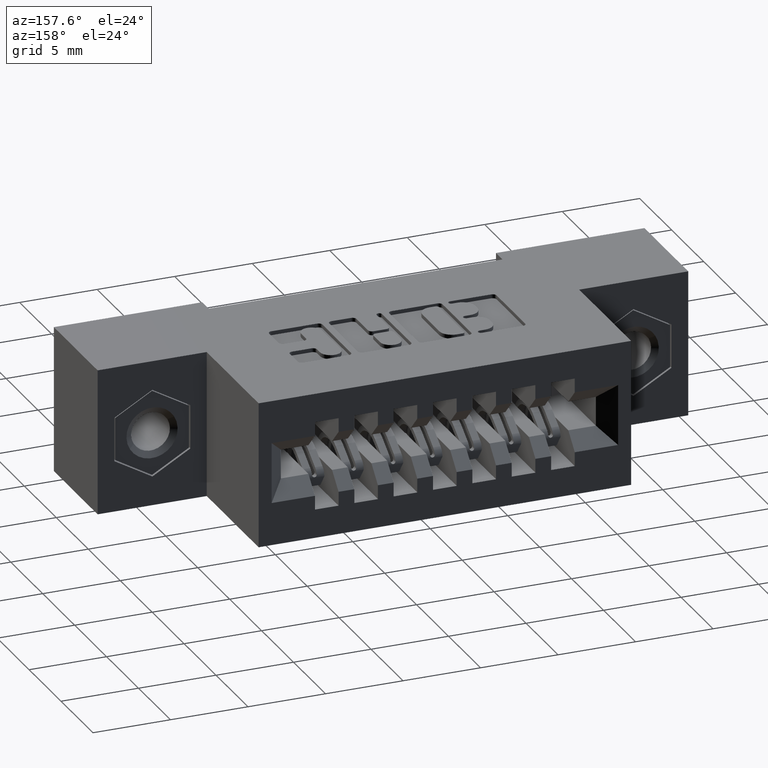
[diagram: clean part render]
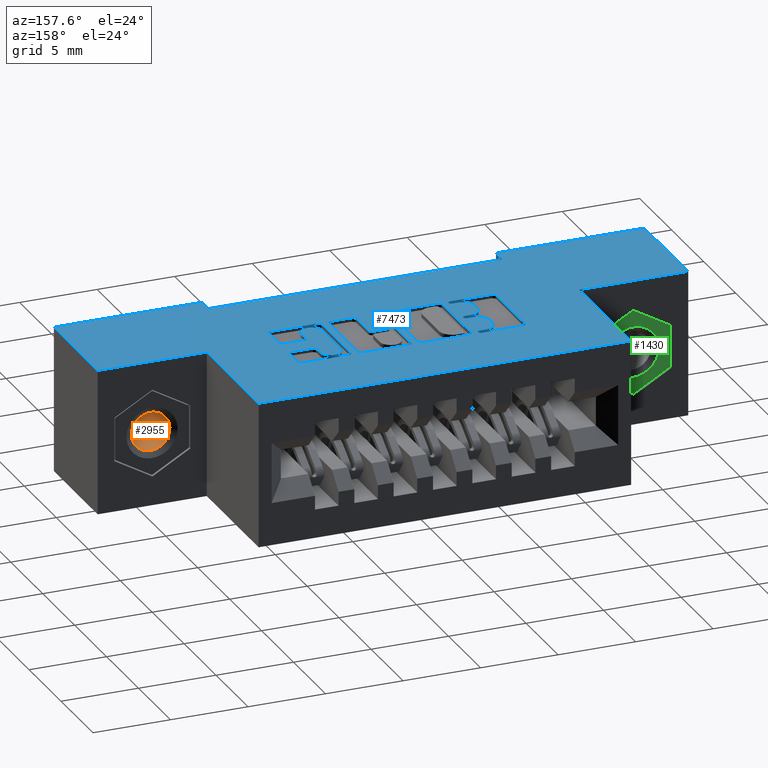
[diagram: same view with three faces highlighted in distinct colors, each labeled with its STEP entity id]
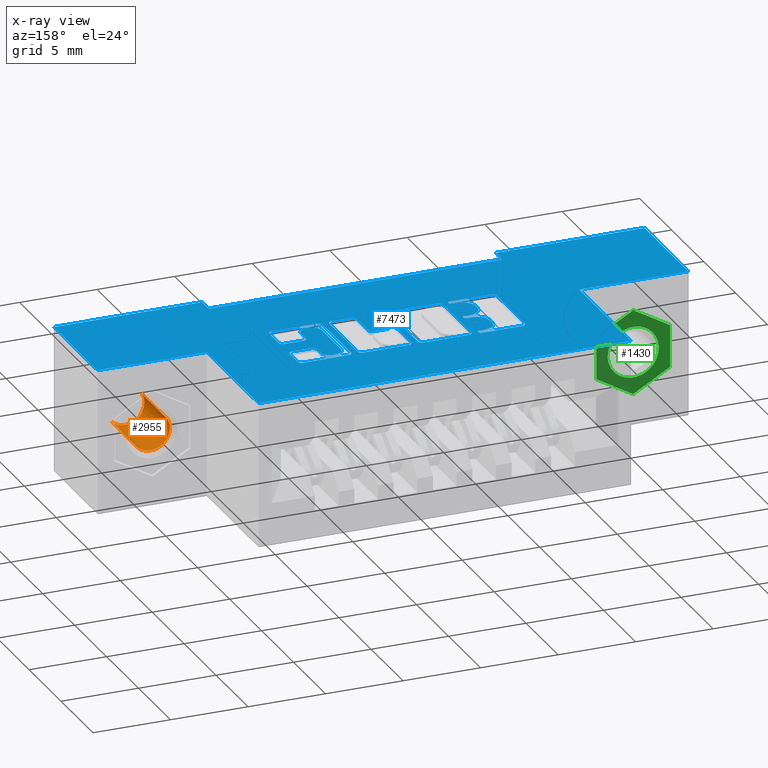
[diagram: x-ray of the same camera — body ghosted, the three highlighted faces saturated]
A machine part, auxiliary view with three faces highlighted in distinct colors.
The next image is the same camera in x-ray (body ghosted, the three faces saturated) — at least one of them is partly hidden behind the body in this view.
Their STEP definitions:

[orange] entity #2955 — the highlighted cylindrical surface (edge-blend (fillet) strip) has radius 1.25 mm, axis along (0, 1, 0).
#11 = CARTESIAN_POINT ( 'NONE',  ( 2.731847993664263200E-016, 0.1667125984251968700, 0.0000000000000000000 ) ) ;
#49 = CIRCLE ( 'NONE', #383, 0.04921259842519656900 ) ;
#81 = ORIENTED_EDGE ( 'NONE', *, *, #6259, .F. ) ;
#383 = AXIS2_PLACEMENT_3D ( 'NONE', #6000, #1315, #6780 ) ;
#675 = CARTESIAN_POINT ( 'NONE',  ( 5.469327078594382600E-016, -2.988895590331100800E-018, 0.04921259842519894200 ) ) ;
#790 = DIRECTION ( 'NONE',  ( -1.110223024625159700E-016, 0.0000000000000000000, 1.000000000000000000 ) ) ;
#813 = CARTESIAN_POINT ( 'NONE',  ( 5.518332947201812100E-016, 0.009114860549017465800, -0.04921259842519438300 ) ) ;
#1024 = ORIENTED_EDGE ( 'NONE', *, *, #5603, .T. ) ;
#1137 = DIRECTION ( 'NONE',  ( 1.110223024625159700E-016, 6.073435839552820600E-017, -1.000000000000000000 ) ) ;
#1315 = DIRECTION ( 'NONE',  ( 8.952246189382937400E-016, -1.000000000000000000, 6.073435839552846500E-017 ) ) ;
#1390 = ORIENTED_EDGE ( 'NONE', *, *, #7040, .F. ) ;
#1426 = CYLINDRICAL_SURFACE ( 'NONE', #2700, 0.04921259842519675600 ) ;
#1502 = DIRECTION ( 'NONE',  ( 8.952246189382937400E-016, -1.000000000000000000, 6.073435839552846500E-017 ) ) ;
#2214 = VERTEX_POINT ( 'NONE', #7452 ) ;
#2700 = AXIS2_PLACEMENT_3D ( 'NONE', #8784, #5061, #1137 ) ;
#2866 = VERTEX_POINT ( 'NONE', #813 ) ;
#2955 = ADVANCED_FACE ( 'NONE', ( #7591 ), #1426, .F. ) ;
#3823 = CIRCLE ( 'NONE', #8858, 0.04921259842519675600 ) ;
#4843 = DIRECTION ( 'NONE',  ( 8.952246189382937400E-016, -1.000000000000000000, 6.073435839552846500E-017 ) ) ;
#5061 = DIRECTION ( 'NONE',  ( 8.952246189382937400E-016, -1.000000000000000000, 6.073435839552846500E-017 ) ) ;
#5483 = DIRECTION ( 'NONE',  ( 8.952246189382937400E-016, -1.000000000000000000, 6.073435839552846500E-017 ) ) ;
#5603 = EDGE_CURVE ( 'NONE', #8729, #2866, #49, .T. ) ;
#6000 = CARTESIAN_POINT ( 'NONE',  ( 5.463695987328526400E-016, 0.009114860549017462400, 2.185478394931410600E-015 ) ) ;
#6132 = VECTOR ( 'NONE', #1502, 39.37007874015748100 ) ;
#6259 = EDGE_CURVE ( 'NONE', #2214, #7084, #3823, .T. ) ;
#6738 = EDGE_LOOP ( 'NONE', ( #81, #8319, #1024, #1390 ) ) ;
#6780 = DIRECTION ( 'NONE',  ( 1.110223024625163900E-016, 6.505213034913063600E-017, -1.000000000000000000 ) ) ;
#6910 = EDGE_CURVE ( 'NONE', #2214, #8729, #8126, .T. ) ;
#6979 = LINE ( 'NONE', #7105, #8713 ) ;
#7040 = EDGE_CURVE ( 'NONE', #7084, #2866, #6979, .T. ) ;
#7084 = VERTEX_POINT ( 'NONE', #8657 ) ;
#7105 = CARTESIAN_POINT ( 'NONE',  ( 5.518332947201812100E-016, 2.988895590331106600E-018, -0.04921259842519457000 ) ) ;
#7106 = CARTESIAN_POINT ( 'NONE',  ( 4.682301728798986400E-016, 0.009114860549017465800, 0.04921259842519875400 ) ) ;
#7452 = CARTESIAN_POINT ( 'NONE',  ( 2.677211033790978100E-016, 0.1667125984251968700, 0.04921259842519675600 ) ) ;
#7591 = FACE_OUTER_BOUND ( 'NONE', #6738, .T. ) ;
#8126 = LINE ( 'NONE', #675, #6132 ) ;
#8319 = ORIENTED_EDGE ( 'NONE', *, *, #6910, .T. ) ;
#8657 = CARTESIAN_POINT ( 'NONE',  ( 2.928524872544166700E-016, 0.1667125984251968700, -0.04921259842519675600 ) ) ;
#8713 = VECTOR ( 'NONE', #4843, 39.37007874015748100 ) ;
#8729 = VERTEX_POINT ( 'NONE', #7106 ) ;
#8784 = CARTESIAN_POINT ( 'NONE',  ( 5.463695987328526400E-016, 0.0000000000000000000, 2.185478394931410600E-015 ) ) ;
#8858 = AXIS2_PLACEMENT_3D ( 'NONE', #11, #5483, #790 ) ;

[blue] entity #7473 — the highlighted planar face has unit normal (0, 0, -1).
#2 = CARTESIAN_POINT ( 'NONE',  ( 0.7315956183678961100, 0.4131567020380509900, 0.0000000000000000000 ) ) ;
#71 = VECTOR ( 'NONE', #8279, 39.37007874015748100 ) ;
#97 = AXIS2_PLACEMENT_3D ( 'NONE', #4127, #9402, #4936 ) ;
#100 = DIRECTION ( 'NONE',  ( 0.0000000000000000000, 0.0000000000000000000, -1.000000000000000000 ) ) ;
#139 = DIRECTION ( 'NONE',  ( -1.000000000000000000, 0.0000000000000000000, 0.0000000000000000000 ) ) ;
#153 = ORIENTED_EDGE ( 'NONE', *, *, #7092, .F. ) ;
#160 = EDGE_CURVE ( 'NONE', #6953, #557, #7519, .T. ) ;
#197 = CARTESIAN_POINT ( 'NONE',  ( 0.2770000000000000200, 0.2699999999999999600, -1.696135816819084800E-017 ) ) ;
#203 = CARTESIAN_POINT ( 'NONE',  ( 1.046678631909972100, 0.0000000000000000000, 0.0000000000000000000 ) ) ;
#219 = EDGE_CURVE ( 'NONE', #4452, #749, #2970, .T. ) ;
#221 = CARTESIAN_POINT ( 'NONE',  ( 0.7585887114283308400, 0.2237142671046479200, 0.0000000000000000000 ) ) ;
#256 = CARTESIAN_POINT ( 'NONE',  ( 0.8346601555077879400, 0.2266589681657878200, 0.0000000000000000000 ) ) ;
#261 = FACE_BOUND ( 'NONE', #8059, .T. ) ;
#262 = CARTESIAN_POINT ( 'NONE',  ( 0.5382269153529095600, 0.0000000000000000000, 0.0000000000000000000 ) ) ;
#274 = VERTEX_POINT ( 'NONE', #8134 ) ;
#294 = VECTOR ( 'NONE', #8638, 39.37007874015748100 ) ;
#295 = VERTEX_POINT ( 'NONE', #687 ) ;
#323 = EDGE_CURVE ( 'NONE', #1376, #5575, #2468, .T. ) ;
#350 = CARTESIAN_POINT ( 'NONE',  ( 0.6157707099629760000, 0.2266589681657899300, 0.0000000000000000000 ) ) ;
#357 = VERTEX_POINT ( 'NONE', #1620 ) ;
#376 = VERTEX_POINT ( 'NONE', #3163 ) ;
#394 = DIRECTION ( 'NONE',  ( 0.0000000000000000000, -1.000000000000000000, 0.0000000000000000000 ) ) ;
#402 = CARTESIAN_POINT ( 'NONE',  ( 0.5696370600051253700, 0.3680046191005197900, 0.0000000000000000000 ) ) ;
#424 = CARTESIAN_POINT ( 'NONE',  ( 1.500000000000000200, 0.5899999999999999700, 0.0000000000000000000 ) ) ;
#438 = LINE ( 'NONE', #262, #8403 ) ;
#441 = CARTESIAN_POINT ( 'NONE',  ( 0.8842292900370104500, 0.2168432979619846200, 0.0000000000000000000 ) ) ;
#460 = EDGE_CURVE ( 'NONE', #3852, #6860, #7302, .T. ) ;
#496 = CARTESIAN_POINT ( 'NONE',  ( 0.7315956183678620200, 0.2266589681657899300, 0.0000000000000000000 ) ) ;
#534 = EDGE_CURVE ( 'NONE', #3798, #9093, #6605, .T. ) ;
#541 = ORIENTED_EDGE ( 'NONE', *, *, #8418, .F. ) ;
#543 = CARTESIAN_POINT ( 'NONE',  ( 0.3770000000000000600, 0.04000000000000000100, 0.0000000000000000000 ) ) ;
#557 = VERTEX_POINT ( 'NONE', #8303 ) ;
#565 = CARTESIAN_POINT ( 'NONE',  ( 1.123000000000000200, 0.0000000000000000000, -1.895600338963814900E-033 ) ) ;
#569 = AXIS2_PLACEMENT_3D ( 'NONE', #1028, #6471, #1821 ) ;
#591 = ORIENTED_EDGE ( 'NONE', *, *, #3522, .F. ) ;
#599 = VECTOR ( 'NONE', #1406, 39.37007874015748100 ) ;
#609 = DIRECTION ( 'NONE',  ( 1.000000000000000000, 0.0000000000000000000, 0.0000000000000000000 ) ) ;
#615 = CIRCLE ( 'NONE', #1755, 0.03141014465218178200 ) ;
#617 = CARTESIAN_POINT ( 'NONE',  ( 0.9112223830974585100, 0.4033410318342101100, 0.0000000000000000000 ) ) ;
#618 = ORIENTED_EDGE ( 'NONE', *, *, #3350, .F. ) ;
#626 = DIRECTION ( 'NONE',  ( 1.000000000000000000, 0.0000000000000000000, 0.0000000000000000000 ) ) ;
#644 = LINE ( 'NONE', #3091, #2510 ) ;
#687 = CARTESIAN_POINT ( 'NONE',  ( 1.046678631909972100, 0.3537718973050386600, 0.0000000000000000000 ) ) ;
#694 = VERTEX_POINT ( 'NONE', #4759 ) ;
#705 = CIRCLE ( 'NONE', #3276, 0.006870969142657995000 ) ;
#749 = VERTEX_POINT ( 'NONE', #7565 ) ;
#803 = CARTESIAN_POINT ( 'NONE',  ( 0.0000000000000000000, 0.3218709691426838700, 0.0000000000000000000 ) ) ;
#814 = CARTESIAN_POINT ( 'NONE',  ( 0.8150288151001881000, 0.3081290308573497700, 0.0000000000000000000 ) ) ;
#847 = ORIENTED_EDGE ( 'NONE', *, *, #2087, .F. ) ;
#854 = DIRECTION ( 'NONE',  ( 0.0000000000000000000, -1.000000000000000000, 0.0000000000000000000 ) ) ;
#890 = EDGE_CURVE ( 'NONE', #6743, #4610, #7295, .T. ) ;
#900 = AXIS2_PLACEMENT_3D ( 'NONE', #8083, #3517, #8825 ) ;
#904 = EDGE_CURVE ( 'NONE', #4338, #4242, #5276, .T. ) ;
#943 = ORIENTED_EDGE ( 'NONE', *, *, #4410, .T. ) ;
#980 = ORIENTED_EDGE ( 'NONE', *, *, #2233, .T. ) ;
#1028 = CARTESIAN_POINT ( 'NONE',  ( 0.5831336065353355200, 0.2237142671046479200, 0.0000000000000000000 ) ) ;
#1036 = ORIENTED_EDGE ( 'NONE', *, *, #7451, .F. ) ;
#1061 = CARTESIAN_POINT ( 'NONE',  ( 0.5382269153529277700, 0.2619953808994903700, 0.0000000000000000000 ) ) ;
#1085 = VERTEX_POINT ( 'NONE', #3289 ) ;
#1086 = EDGE_CURVE ( 'NONE', #6871, #3355, #7626, .T. ) ;
#1096 = ORIENTED_EDGE ( 'NONE', *, *, #9743, .F. ) ;
#1117 = CARTESIAN_POINT ( 'NONE',  ( 1.036862961706132000, 0.4033410318342109400, 0.0000000000000000000 ) ) ;
#1120 = EDGE_CURVE ( 'NONE', #3050, #357, #7399, .T. ) ;
#1150 = CIRCLE ( 'NONE', #3542, 0.009815670203811672700 ) ;
#1189 = DIRECTION ( 'NONE',  ( 1.000000000000000000, 0.0000000000000000000, 0.0000000000000000000 ) ) ;
#1194 = VERTEX_POINT ( 'NONE', #1770 ) ;
#1237 = DIRECTION ( 'NONE',  ( -0.0000000000000000000, 0.0000000000000000000, 1.000000000000000000 ) ) ;
#1244 = VERTEX_POINT ( 'NONE', #617 ) ;
#1248 = LINE ( 'NONE', #6311, #6369 ) ;
#1253 = CARTESIAN_POINT ( 'NONE',  ( 1.223000000000000100, 0.2699999999999999600, -1.328129453675304600E-016 ) ) ;
#1264 = CARTESIAN_POINT ( 'NONE',  ( 0.6157707099630100900, 0.4033410318342101100, 0.0000000000000000000 ) ) ;
#1283 = DIRECTION ( 'NONE',  ( -0.0000000000000000000, -1.000000000000000000, -0.0000000000000000000 ) ) ;
#1304 = EDGE_CURVE ( 'NONE', #2135, #357, #5755, .T. ) ;
#1310 = CIRCLE ( 'NONE', #900, 0.02625691779518036400 ) ;
#1323 = LINE ( 'NONE', #203, #8998 ) ;
#1330 = DIRECTION ( 'NONE',  ( -0.0000000000000000000, 0.0000000000000000000, 1.000000000000000000 ) ) ;
#1376 = VERTEX_POINT ( 'NONE', #4316 ) ;
#1391 = VECTOR ( 'NONE', #3413, 39.37007874015748100 ) ;
#1404 = ORIENTED_EDGE ( 'NONE', *, *, #2504, .T. ) ;
#1406 = DIRECTION ( 'NONE',  ( 0.0000000000000000000, -1.000000000000000000, 0.0000000000000000000 ) ) ;
#1414 = VERTEX_POINT ( 'NONE', #4503 ) ;
#1436 = CARTESIAN_POINT ( 'NONE',  ( 0.0000000000000000000, 0.2963502266127575600, 0.0000000000000000000 ) ) ;
#1439 = ORIENTED_EDGE ( 'NONE', *, *, #904, .F. ) ;
#1440 = EDGE_CURVE ( 'NONE', #7650, #6435, #6822, .T. ) ;
#1456 = ORIENTED_EDGE ( 'NONE', *, *, #3552, .F. ) ;
#1512 = LINE ( 'NONE', #2605, #7213 ) ;
#1526 = EDGE_CURVE ( 'NONE', #6654, #3363, #1970, .T. ) ;
#1553 = VECTOR ( 'NONE', #4535, 39.37007874015748100 ) ;
#1590 = DIRECTION ( 'NONE',  ( -1.000000000000000000, 0.0000000000000000000, 0.0000000000000000000 ) ) ;
#1620 = CARTESIAN_POINT ( 'NONE',  ( 0.8346601555077857200, 0.2168432979619846200, 0.0000000000000000000 ) ) ;
#1623 = CARTESIAN_POINT ( 'NONE',  ( 0.8150288151001877600, 0.2983133606535527900, 0.0000000000000000000 ) ) ;
#1690 = ORIENTED_EDGE ( 'NONE', *, *, #7628, .T. ) ;
#1691 = EDGE_CURVE ( 'NONE', #5988, #7830, #4421, .T. ) ;
#1733 = VERTEX_POINT ( 'NONE', #565 ) ;
#1739 = EDGE_CURVE ( 'NONE', #6368, #274, #5747, .T. ) ;
#1747 = CARTESIAN_POINT ( 'NONE',  ( 0.9210380533012994000, 0.4131567020380509900, 0.0000000000000000000 ) ) ;
#1748 = CARTESIAN_POINT ( 'NONE',  ( 0.3770000000000000600, 0.04000000000000000100, 0.0000000000000000000 ) ) ;
#1755 = AXIS2_PLACEMENT_3D ( 'NONE', #8864, #4368, #9603 ) ;
#1757 = AXIS2_PLACEMENT_3D ( 'NONE', #8038, #3457, #8774 ) ;
#1769 = VECTOR ( 'NONE', #9368, 39.37007874015748100 ) ;
#1770 = CARTESIAN_POINT ( 'NONE',  ( 0.5900045756779998000, 0.4062857328953862800, 0.0000000000000000000 ) ) ;
#1774 = ORIENTED_EDGE ( 'NONE', *, *, #1691, .F. ) ;
#1777 = CIRCLE ( 'NONE', #569, 0.006870969142662229500 ) ;
#1804 = CARTESIAN_POINT ( 'NONE',  ( 0.5831336064154143400, 0.2168432979619857000, 0.0000000000000000000 ) ) ;
#1806 = EDGE_CURVE ( 'NONE', #295, #9564, #1323, .T. ) ;
#1817 = AXIS2_PLACEMENT_3D ( 'NONE', #2140, #7517, #2942 ) ;
#1821 = DIRECTION ( 'NONE',  ( 1.000000000000000000, 0.0000000000000000000, 0.0000000000000000000 ) ) ;
#1822 = AXIS2_PLACEMENT_3D ( 'NONE', #9734, #9660, #9649 ) ;
#1833 = EDGE_CURVE ( 'NONE', #7462, #4338, #2954, .T. ) ;
#1861 = DIRECTION ( 'NONE',  ( 1.000000000000000000, 0.0000000000000000000, 0.0000000000000000000 ) ) ;
#1863 = DIRECTION ( 'NONE',  ( -0.0000000000000000000, 0.0000000000000000000, 1.000000000000000000 ) ) ;
#1908 = EDGE_CURVE ( 'NONE', #5237, #376, #4537, .T. ) ;
#1909 = DIRECTION ( 'NONE',  ( 1.000000000000000000, 0.0000000000000000000, 0.0000000000000000000 ) ) ;
#1916 = VERTEX_POINT ( 'NONE', #221 ) ;
#1926 = CARTESIAN_POINT ( 'NONE',  ( 0.0000000000000000000, 0.5899999999999999700, 0.0000000000000000000 ) ) ;
#1945 = CARTESIAN_POINT ( 'NONE',  ( 0.5831336065353099900, 0.3150000000000203200, 0.0000000000000000000 ) ) ;
#1948 = ORIENTED_EDGE ( 'NONE', *, *, #5367, .T. ) ;
#1959 = CARTESIAN_POINT ( 'NONE',  ( 0.2770000000000000200, 0.2699999999999999600, -1.696135816819084800E-017 ) ) ;
#1970 = CIRCLE ( 'NONE', #4709, 0.009815670203795690700 ) ;
#1994 = CARTESIAN_POINT ( 'NONE',  ( 0.9774781569731658700, 0.3731578454992599000, 0.0000000000000000000 ) ) ;
#2006 = LINE ( 'NONE', #8433, #5901 ) ;
#2029 = LINE ( 'NONE', #9389, #9846 ) ;
#2036 = ORIENTED_EDGE ( 'NONE', *, *, #6324, .F. ) ;
#2087 = EDGE_CURVE ( 'NONE', #1916, #6357, #705, .T. ) ;
#2126 = LINE ( 'NONE', #197, #4209 ) ;
#2135 = VERTEX_POINT ( 'NONE', #2190 ) ;
#2139 = LINE ( 'NONE', #9638, #6028 ) ;
#2140 = CARTESIAN_POINT ( 'NONE',  ( 0.5696370600050839600, 0.2767188862052005200, 0.0000000000000000000 ) ) ;
#2149 = CARTESIAN_POINT ( 'NONE',  ( 0.9774781569731789700, 0.2568421540424529700, 0.0000000000000000000 ) ) ;
#2152 = CARTESIAN_POINT ( 'NONE',  ( 0.9872938271769670100, 0.2865345564089695800, 0.0000000000000000000 ) ) ;
#2190 = CARTESIAN_POINT ( 'NONE',  ( 0.8248444853039846900, 0.2266589681657878200, 0.0000000000000000000 ) ) ;
#2204 = ORIENTED_EDGE ( 'NONE', *, *, #3492, .F. ) ;
#2233 = EDGE_CURVE ( 'NONE', #4799, #6357, #3660, .T. ) ;
#2255 = EDGE_CURVE ( 'NONE', #6860, #1194, #3425, .T. ) ;
#2260 = CARTESIAN_POINT ( 'NONE',  ( 1.036862961706167100, 0.3439562271012336900, 0.0000000000000000000 ) ) ;
#2270 = AXIS2_PLACEMENT_3D ( 'NONE', #350, #8537, #4638 ) ;
#2279 = CIRCLE ( 'NONE', #6782, 0.009815670203796920600 ) ;
#2294 = CARTESIAN_POINT ( 'NONE',  ( -2.742036592681083100E-014, 0.2305852362472408400, 0.0000000000000000000 ) ) ;
#2304 = CARTESIAN_POINT ( 'NONE',  ( 0.5831336065353355200, 0.2237142671046479200, 0.0000000000000000000 ) ) ;
#2354 = ORIENTED_EDGE ( 'NONE', *, *, #1833, .F. ) ;
#2357 = FACE_OUTER_BOUND ( 'NONE', #4311, .T. ) ;
#2371 = CARTESIAN_POINT ( 'NONE',  ( 0.7315956183678620200, 0.2168432979619831800, 0.0000000000000000000 ) ) ;
#2395 = VECTOR ( 'NONE', #6377, 39.37007874015748100 ) ;
#2396 = VERTEX_POINT ( 'NONE', #1061 ) ;
#2413 = VERTEX_POINT ( 'NONE', #1804 ) ;
#2415 = AXIS2_PLACEMENT_3D ( 'NONE', #3242, #5181, #5128 ) ;
#2427 = AXIS2_PLACEMENT_3D ( 'NONE', #1945, #7345, #2756 ) ;
#2431 = DIRECTION ( 'NONE',  ( 1.000000000000000000, 0.0000000000000000000, 0.0000000000000000000 ) ) ;
#2446 = CARTESIAN_POINT ( 'NONE',  ( 0.0000000000000000000, 0.4131567020380509900, 0.0000000000000000000 ) ) ;
#2461 = ORIENTED_EDGE ( 'NONE', *, *, #1739, .T. ) ;
#2462 = EDGE_CURVE ( 'NONE', #7788, #3798, #9562, .T. ) ;
#2468 = LINE ( 'NONE', #4828, #6102 ) ;
#2504 = EDGE_CURVE ( 'NONE', #5521, #9073, #9331, .T. ) ;
#2510 = VECTOR ( 'NONE', #3855, 39.37007874015748100 ) ;
#2552 = EDGE_CURVE ( 'NONE', #3169, #2870, #4896, .T. ) ;
#2578 = CIRCLE ( 'NONE', #8197, 0.009815670203840902800 ) ;
#2586 = ORIENTED_EDGE ( 'NONE', *, *, #3028, .F. ) ;
#2596 = ORIENTED_EDGE ( 'NONE', *, *, #3996, .T. ) ;
#2605 = CARTESIAN_POINT ( 'NONE',  ( 0.5382269153529277700, 0.0000000000000000000, 0.0000000000000000000 ) ) ;
#2620 = FACE_BOUND ( 'NONE', #3788, .T. ) ;
#2628 = CARTESIAN_POINT ( 'NONE',  ( 0.8940449602408067100, 0.2266589681657808500, 0.0000000000000000000 ) ) ;
#2630 = VECTOR ( 'NONE', #139, 39.37007874015748100 ) ;
#2635 = VERTEX_POINT ( 'NONE', #8989 ) ;
#2682 = CARTESIAN_POINT ( 'NONE',  ( 1.036862961706134200, 0.2266589681657899300, 0.0000000000000000000 ) ) ;
#2756 = DIRECTION ( 'NONE',  ( 1.000000000000000000, 0.0000000000000000000, 0.0000000000000000000 ) ) ;
#2763 = CARTESIAN_POINT ( 'NONE',  ( 0.8248444853039846900, 0.0000000000000000000, 0.0000000000000000000 ) ) ;
#2779 = VERTEX_POINT ( 'NONE', #4001 ) ;
#2786 = CIRCLE ( 'NONE', #8070, 0.009815670203803203800 ) ;
#2799 = DIRECTION ( 'NONE',  ( -0.0000000000000000000, 0.0000000000000000000, 1.000000000000000000 ) ) ;
#2808 = VECTOR ( 'NONE', #9414, 39.37007874015748100 ) ;
#2812 = CARTESIAN_POINT ( 'NONE',  ( -0.0000000000000000000, 0.2168432979619831800, 0.0000000000000000000 ) ) ;
#2816 = LINE ( 'NONE', #4405, #8411 ) ;
#2847 = VERTEX_POINT ( 'NONE', #1747 ) ;
#2860 = ORIENTED_EDGE ( 'NONE', *, *, #8986, .F. ) ;
#2870 = VERTEX_POINT ( 'NONE', #2 ) ;
#2942 = DIRECTION ( 'NONE',  ( 1.000000000000000000, 0.0000000000000000000, 0.0000000000000000000 ) ) ;
#2951 = DIRECTION ( 'NONE',  ( 1.000000000000000000, 0.0000000000000000000, 0.0000000000000000000 ) ) ;
#2952 = VERTEX_POINT ( 'NONE', #4265 ) ;
#2954 = LINE ( 'NONE', #7543, #6816 ) ;
#2956 = VECTOR ( 'NONE', #7829, 39.37007874015748100 ) ;
#2968 = CARTESIAN_POINT ( 'NONE',  ( 0.7414112885716689400, 0.4033410318342101100, 0.0000000000000000000 ) ) ;
#2970 = CIRCLE ( 'NONE', #4975, 0.009815670203840902800 ) ;
#2976 = VECTOR ( 'NONE', #1590, 39.37007874015748100 ) ;
#2982 = ORIENTED_EDGE ( 'NONE', *, *, #5066, .F. ) ;
#3012 = DIRECTION ( 'NONE',  ( -0.0000000000000000000, 0.0000000000000000000, 1.000000000000000000 ) ) ;
#3025 = AXIS2_PLACEMENT_3D ( 'NONE', #2304, #7677, #3098 ) ;
#3028 = EDGE_CURVE ( 'NONE', #2635, #6345, #8861, .T. ) ;
#3050 = VERTEX_POINT ( 'NONE', #441 ) ;
#3063 = EDGE_CURVE ( 'NONE', #7898, #9321, #2816, .T. ) ;
#3090 = CARTESIAN_POINT ( 'NONE',  ( 0.5696370600050839600, 0.3081290308573568200, 0.0000000000000000000 ) ) ;
#3091 = CARTESIAN_POINT ( 'NONE',  ( 0.0000000000000000000, 0.0000000000000000000, 0.0000000000000000000 ) ) ;
#3098 = DIRECTION ( 'NONE',  ( 1.000000000000000000, 0.0000000000000000000, 0.0000000000000000000 ) ) ;
#3125 = VERTEX_POINT ( 'NONE', #6787 ) ;
#3155 = EDGE_CURVE ( 'NONE', #1244, #1085, #9879, .T. ) ;
#3158 = DIRECTION ( 'NONE',  ( 1.000000000000000000, 0.0000000000000000000, 0.0000000000000000000 ) ) ;
#3163 = CARTESIAN_POINT ( 'NONE',  ( 0.7821463199174502100, 0.3081290308573486100, 0.0000000000000000000 ) ) ;
#3169 = VERTEX_POINT ( 'NONE', #2968 ) ;
#3170 = CARTESIAN_POINT ( 'NONE',  ( 0.5831336065353512900, 0.4062857328953862800, 0.0000000000000000000 ) ) ;
#3189 = ORIENTED_EDGE ( 'NONE', *, *, #2462, .F. ) ;
#3191 = LINE ( 'NONE', #2446, #2956 ) ;
#3192 = ORIENTED_EDGE ( 'NONE', *, *, #8976, .T. ) ;
#3214 = VECTOR ( 'NONE', #5126, 39.37007874015748100 ) ;
#3234 = DIRECTION ( 'NONE',  ( 1.000000000000000000, 0.0000000000000000000, -6.123233995736768500E-017 ) ) ;
#3236 = EDGE_CURVE ( 'NONE', #2413, #9332, #5011, .T. ) ;
#3242 = CARTESIAN_POINT ( 'NONE',  ( 0.5696370600050839600, 0.3532811137948583300, 0.0000000000000000000 ) ) ;
#3266 = CIRCLE ( 'NONE', #5562, 0.006870969142663527000 ) ;
#3276 = AXIS2_PLACEMENT_3D ( 'NONE', #8937, #8857, #7975 ) ;
#3289 = CARTESIAN_POINT ( 'NONE',  ( 0.9112223830974585100, 0.2266589681657899300, 0.0000000000000000000 ) ) ;
#3322 = ORIENTED_EDGE ( 'NONE', *, *, #5908, .F. ) ;
#3327 = VERTEX_POINT ( 'NONE', #4770 ) ;
#3338 = DIRECTION ( 'NONE',  ( -0.0000000000000000000, 1.000000000000000000, -0.0000000000000000000 ) ) ;
#3350 = EDGE_CURVE ( 'NONE', #9556, #5496, #7814, .T. ) ;
#3355 = VERTEX_POINT ( 'NONE', #9283 ) ;
#3363 = VERTEX_POINT ( 'NONE', #4807 ) ;
#3386 = AXIS2_PLACEMENT_3D ( 'NONE', #496, #8388, #8255 ) ;
#3413 = DIRECTION ( 'NONE',  ( 0.0000000000000000000, 1.000000000000000000, -0.0000000000000000000 ) ) ;
#3425 = CIRCLE ( 'NONE', #8374, 0.006870969142648501700 ) ;
#3431 = DIRECTION ( 'NONE',  ( 0.0000000000000000000, 1.000000000000000000, -0.0000000000000000000 ) ) ;
#3442 = DIRECTION ( 'NONE',  ( 1.000000000000000000, 0.0000000000000000000, 0.0000000000000000000 ) ) ;
#3457 = DIRECTION ( 'NONE',  ( -0.0000000000000000000, 0.0000000000000000000, 1.000000000000000000 ) ) ;
#3470 = VECTOR ( 'NONE', #4230, 39.37007874015748100 ) ;
#3483 = ORIENTED_EDGE ( 'NONE', *, *, #890, .T. ) ;
#3492 = EDGE_CURVE ( 'NONE', #6558, #9073, #6902, .T. ) ;
#3493 = CIRCLE ( 'NONE', #9367, 0.009815670203806345400 ) ;
#3517 = DIRECTION ( 'NONE',  ( -0.0000000000000000000, 0.0000000000000000000, 1.000000000000000000 ) ) ;
#3522 = EDGE_CURVE ( 'NONE', #6368, #4040, #438, .T. ) ;
#3542 = AXIS2_PLACEMENT_3D ( 'NONE', #9772, #5325, #626 ) ;
#3546 = DIRECTION ( 'NONE',  ( -0.0000000000000000000, 0.0000000000000000000, 1.000000000000000000 ) ) ;
#3549 = ORIENTED_EDGE ( 'NONE', *, *, #6751, .T. ) ;
#3552 = EDGE_CURVE ( 'NONE', #3050, #5395, #4385, .T. ) ;
#3560 = ORIENTED_EDGE ( 'NONE', *, *, #460, .F. ) ;
#3613 = EDGE_CURVE ( 'NONE', #2135, #8875, #8639, .T. ) ;
#3624 = CARTESIAN_POINT ( 'NONE',  ( 0.9872938271769670100, 0.2963502266127575600, 0.0000000000000000000 ) ) ;
#3660 = LINE ( 'NONE', #9546, #9453 ) ;
#3670 = EDGE_LOOP ( 'NONE', ( #2982, #4917, #6233, #2036, #1404, #2204, #9602, #4836, #541, #6988, #3189, #4271, #3995, #2586, #1036, #5503, #2860, #8313, #5512, #6212 ) ) ;
#3736 = VERTEX_POINT ( 'NONE', #7475 ) ;
#3763 = CIRCLE ( 'NONE', #5125, 0.009815670203796511200 ) ;
#3776 = DIRECTION ( 'NONE',  ( -0.0000000000000000000, 0.0000000000000000000, 1.000000000000000000 ) ) ;
#3783 = CARTESIAN_POINT ( 'NONE',  ( 1.223000000000000100, 0.5899999999999999700, -1.328129453675304600E-016 ) ) ;
#3786 = EDGE_CURVE ( 'NONE', #3327, #5738, #8276, .T. ) ;
#3788 = EDGE_LOOP ( 'NONE', ( #3192, #591, #2461, #6319, #4534, #8196, #4032, #3549, #3322, #4911, #5790, #6503, #4469, #8773, #7496, #7270, #7726, #6943, #7184, #3925, #3560 ) ) ;
#3798 = VERTEX_POINT ( 'NONE', #9740 ) ;
#3852 = VERTEX_POINT ( 'NONE', #6901 ) ;
#3855 = DIRECTION ( 'NONE',  ( 1.000000000000000000, 0.0000000000000000000, 0.0000000000000000000 ) ) ;
#3859 = CARTESIAN_POINT ( 'NONE',  ( -0.0000000000000000000, 0.3994147637527357100, 0.0000000000000000000 ) ) ;
#3925 = ORIENTED_EDGE ( 'NONE', *, *, #2255, .F. ) ;
#3932 = DIRECTION ( 'NONE',  ( 1.000000000000000000, 0.0000000000000000000, 0.0000000000000000000 ) ) ;
#3951 = LINE ( 'NONE', #7266, #3470 ) ;
#3958 = CARTESIAN_POINT ( 'NONE',  ( 0.5831336064153888100, 0.3081290308573568200, 0.0000000000000000000 ) ) ;
#3960 = VERTEX_POINT ( 'NONE', #4689 ) ;
#3973 = DIRECTION ( 'NONE',  ( -0.0000000000000000000, 0.0000000000000000000, 1.000000000000000000 ) ) ;
#3984 = CARTESIAN_POINT ( 'NONE',  ( 0.0000000000000000000, 0.5899999999999999700, 0.0000000000000000000 ) ) ;
#3995 = ORIENTED_EDGE ( 'NONE', *, *, #4785, .F. ) ;
#3996 = EDGE_CURVE ( 'NONE', #8875, #5237, #2279, .T. ) ;
#4001 = CARTESIAN_POINT ( 'NONE',  ( 0.5382269153529277700, 0.2767188862052005200, 0.0000000000000000000 ) ) ;
#4009 = DIRECTION ( 'NONE',  ( 1.000000000000000000, 0.0000000000000000000, 0.0000000000000000000 ) ) ;
#4032 = ORIENTED_EDGE ( 'NONE', *, *, #3063, .F. ) ;
#4040 = VERTEX_POINT ( 'NONE', #4831 ) ;
#4043 = AXIS2_PLACEMENT_3D ( 'NONE', #8531, #3973, #9251 ) ;
#4046 = CARTESIAN_POINT ( 'NONE',  ( 0.7723306497136468400, 0.2237142671046479200, 0.0000000000000000000 ) ) ;
#4091 = CARTESIAN_POINT ( 'NONE',  ( -0.0000000000000000000, 0.4131567020380065300, 0.0000000000000000000 ) ) ;
#4095 = CARTESIAN_POINT ( 'NONE',  ( 0.0000000000000000000, 0.4131567020380327300, 0.0000000000000000000 ) ) ;
#4113 = AXIS2_PLACEMENT_3D ( 'NONE', #4428, #4207, #3158 ) ;
#4125 = VERTEX_POINT ( 'NONE', #5696 ) ;
#4127 = CARTESIAN_POINT ( 'NONE',  ( 0.4788421106199221600, 0.2266589681657899300, 0.0000000000000000000 ) ) ;
#4156 = CARTESIAN_POINT ( 'NONE',  ( 0.5696370600051095000, 0.2305852362473085900, 0.0000000000000000000 ) ) ;
#4180 = CIRCLE ( 'NONE', #2427, 0.006870969142663527000 ) ;
#4207 = DIRECTION ( 'NONE',  ( -0.0000000000000000000, 0.0000000000000000000, 1.000000000000000000 ) ) ;
#4209 = VECTOR ( 'NONE', #3338, 39.37007874015748100 ) ;
#4229 = DIRECTION ( 'NONE',  ( -0.0000000000000000000, 0.0000000000000000000, 1.000000000000000000 ) ) ;
#4230 = DIRECTION ( 'NONE',  ( 0.0000000000000000000, -1.000000000000000000, 0.0000000000000000000 ) ) ;
#4242 = VERTEX_POINT ( 'NONE', #9530 ) ;
#4265 = CARTESIAN_POINT ( 'NONE',  ( 0.9774781569731658700, 0.3537718973050452100, 0.0000000000000000000 ) ) ;
#4271 = ORIENTED_EDGE ( 'NONE', *, *, #4771, .F. ) ;
#4282 = CARTESIAN_POINT ( 'NONE',  ( -1.087960964565582400E-014, 0.3081290308573210200, 0.0000000000000000000 ) ) ;
#4300 = ORIENTED_EDGE ( 'NONE', *, *, #1526, .F. ) ;
#4311 = EDGE_LOOP ( 'NONE', ( #8910, #8688, #6483, #1439, #2354, #5676, #1774, #153, #618, #1690, #3483, #7339 ) ) ;
#4316 = CARTESIAN_POINT ( 'NONE',  ( 0.4690264404161154100, 0.4033410318342101100, 0.0000000000000000000 ) ) ;
#4338 = VERTEX_POINT ( 'NONE', #5130 ) ;
#4346 = ORIENTED_EDGE ( 'NONE', *, *, #1304, .F. ) ;
#4353 = EDGE_CURVE ( 'NONE', #694, #1414, #3266, .T. ) ;
#4367 = ORIENTED_EDGE ( 'NONE', *, *, #6673, .T. ) ;
#4368 = DIRECTION ( 'NONE',  ( -0.0000000000000000000, 0.0000000000000000000, 1.000000000000000000 ) ) ;
#4376 = CARTESIAN_POINT ( 'NONE',  ( 0.8940449602408067100, 0.4033410318342009500, 0.0000000000000000000 ) ) ;
#4385 = CIRCLE ( 'NONE', #1757, 0.009815670203796237100 ) ;
#4405 = CARTESIAN_POINT ( 'NONE',  ( -0.0000000000000000000, 0.3081290308573568200, 0.0000000000000000000 ) ) ;
#4410 = EDGE_CURVE ( 'NONE', #376, #4799, #2786, .T. ) ;
#4421 = LINE ( 'NONE', #3984, #7974 ) ;
#4428 = CARTESIAN_POINT ( 'NONE',  ( 1.036862961706153100, 0.2865345564089704100, 0.0000000000000000000 ) ) ;
#4452 = VERTEX_POINT ( 'NONE', #8379 ) ;
#4469 = ORIENTED_EDGE ( 'NONE', *, *, #3236, .F. ) ;
#4474 = CARTESIAN_POINT ( 'NONE',  ( 0.9512212391779921700, 0.3731578459575296000, 0.0000000000000000000 ) ) ;
#4482 = LINE ( 'NONE', #4091, #294 ) ;
#4503 = CARTESIAN_POINT ( 'NONE',  ( 0.5831336065353099900, 0.3218709691426838700, 0.0000000000000000000 ) ) ;
#4509 = CARTESIAN_POINT ( 'NONE',  ( 0.0000000000000000000, 0.0000000000000000000, 0.0000000000000000000 ) ) ;
#4534 = ORIENTED_EDGE ( 'NONE', *, *, #4353, .F. ) ;
#4535 = DIRECTION ( 'NONE',  ( 0.0000000000000000000, -1.000000000000000000, 0.0000000000000000000 ) ) ;
#4537 = LINE ( 'NONE', #4282, #8306 ) ;
#4549 = ORIENTED_EDGE ( 'NONE', *, *, #6241, .F. ) ;
#4565 = VECTOR ( 'NONE', #7499, 39.37007874015748100 ) ;
#4605 = CARTESIAN_POINT ( 'NONE',  ( 0.5831336065353512900, 0.3994147637527357100, 0.0000000000000000000 ) ) ;
#4610 = VERTEX_POINT ( 'NONE', #4755 ) ;
#4638 = DIRECTION ( 'NONE',  ( 1.000000000000000000, 0.0000000000000000000, 0.0000000000000000000 ) ) ;
#4653 = CIRCLE ( 'NONE', #7214, 0.03141014465221592800 ) ;
#4671 = EDGE_CURVE ( 'NONE', #9276, #2413, #8498, .T. ) ;
#4684 = ORIENTED_EDGE ( 'NONE', *, *, #4691, .T. ) ;
#4689 = CARTESIAN_POINT ( 'NONE',  ( 0.4788421106199379800, 0.4131567020380327300, 0.0000000000000000000 ) ) ;
#4691 = EDGE_CURVE ( 'NONE', #3125, #3363, #4482, .T. ) ;
#4699 = LINE ( 'NONE', #8571, #2630 ) ;
#4709 = AXIS2_PLACEMENT_3D ( 'NONE', #7927, #5569, #5427 ) ;
#4716 = LINE ( 'NONE', #2812, #8487 ) ;
#4755 = CARTESIAN_POINT ( 'NONE',  ( 0.3769999999999998900, 0.0000000000000000000, 0.0000000000000000000 ) ) ;
#4759 = CARTESIAN_POINT ( 'NONE',  ( 0.5900045756779734900, 0.3150000000000203200, 0.0000000000000000000 ) ) ;
#4766 = ORIENTED_EDGE ( 'NONE', *, *, #2552, .F. ) ;
#4771 = EDGE_CURVE ( 'NONE', #8908, #7788, #9522, .T. ) ;
#4770 = CARTESIAN_POINT ( 'NONE',  ( 0.9872938271769775600, 0.3439562271012335800, 0.0000000000000000000 ) ) ;
#4774 = CARTESIAN_POINT ( 'NONE',  ( 1.223000000000000100, 0.2699999999999999600, -1.328129453675304600E-016 ) ) ;
#4785 = EDGE_CURVE ( 'NONE', #6345, #8908, #3493, .T. ) ;
#4799 = VERTEX_POINT ( 'NONE', #5789 ) ;
#4807 = CARTESIAN_POINT ( 'NONE',  ( 0.8842292900370138900, 0.4131567020380065300, 0.0000000000000000000 ) ) ;
#4812 = PLANE ( 'NONE',  #7145 ) ;
#4828 = CARTESIAN_POINT ( 'NONE',  ( 0.4690264404161154100, 0.0000000000000000000, 0.0000000000000000000 ) ) ;
#4831 = CARTESIAN_POINT ( 'NONE',  ( 0.5382269153529095600, 0.3680046191005197900, 0.0000000000000000000 ) ) ;
#4836 = ORIENTED_EDGE ( 'NONE', *, *, #8479, .F. ) ;
#4896 = CIRCLE ( 'NONE', #1822, 0.009815670203841039800 ) ;
#4911 = ORIENTED_EDGE ( 'NONE', *, *, #7654, .T. ) ;
#4917 = ORIENTED_EDGE ( 'NONE', *, *, #3786, .F. ) ;
#4936 = DIRECTION ( 'NONE',  ( 1.000000000000000000, 0.0000000000000000000, 0.0000000000000000000 ) ) ;
#4975 = AXIS2_PLACEMENT_3D ( 'NONE', #1264, #9214, #6984 ) ;
#4998 = VERTEX_POINT ( 'NONE', #543 ) ;
#5011 = CIRCLE ( 'NONE', #3025, 0.006870969142662229500 ) ;
#5066 = EDGE_CURVE ( 'NONE', #5738, #295, #8502, .T. ) ;
#5089 = CARTESIAN_POINT ( 'NONE',  ( 0.9774781569731789700, 0.2865345564089686900, 0.0000000000000000000 ) ) ;
#5125 = AXIS2_PLACEMENT_3D ( 'NONE', #6022, #1330, #6798 ) ;
#5126 = DIRECTION ( 'NONE',  ( 1.000000000000000000, 0.0000000000000000000, 0.0000000000000000000 ) ) ;
#5128 = DIRECTION ( 'NONE',  ( 1.000000000000000000, 0.0000000000000000000, 0.0000000000000000000 ) ) ;
#5130 = CARTESIAN_POINT ( 'NONE',  ( 1.500000000000000200, 0.2699999999999999600, 0.0000000000000000000 ) ) ;
#5181 = DIRECTION ( 'NONE',  ( -0.0000000000000000000, 0.0000000000000000000, 1.000000000000000000 ) ) ;
#5209 = ORIENTED_EDGE ( 'NONE', *, *, #8732, .F. ) ;
#5237 = VERTEX_POINT ( 'NONE', #814 ) ;
#5244 = CARTESIAN_POINT ( 'NONE',  ( 0.0000000000000000000, 0.0000000000000000000, 0.0000000000000000000 ) ) ;
#5276 = LINE ( 'NONE', #424, #9019 ) ;
#5291 = VECTOR ( 'NONE', #7299, 39.37007874015748100 ) ;
#5312 = VERTEX_POINT ( 'NONE', #7142 ) ;
#5325 = DIRECTION ( 'NONE',  ( -0.0000000000000000000, 0.0000000000000000000, 1.000000000000000000 ) ) ;
#5367 = EDGE_CURVE ( 'NONE', #1916, #7643, #2029, .T. ) ;
#5372 = EDGE_CURVE ( 'NONE', #4125, #4998, #8144, .T. ) ;
#5386 = EDGE_CURVE ( 'NONE', #9332, #7650, #1777, .T. ) ;
#5395 = VERTEX_POINT ( 'NONE', #2628 ) ;
#5427 = DIRECTION ( 'NONE',  ( 1.000000000000000000, 0.0000000000000000000, 0.0000000000000000000 ) ) ;
#5496 = VERTEX_POINT ( 'NONE', #1959 ) ;
#5503 = ORIENTED_EDGE ( 'NONE', *, *, #3155, .F. ) ;
#5512 = ORIENTED_EDGE ( 'NONE', *, *, #9540, .F. ) ;
#5521 = VERTEX_POINT ( 'NONE', #1994 ) ;
#5538 = CARTESIAN_POINT ( 'NONE',  ( -2.134256245050205600E-018, 0.2699999999999999600, 0.0000000000000000000 ) ) ;
#5562 = AXIS2_PLACEMENT_3D ( 'NONE', #5920, #1237, #6693 ) ;
#5569 = DIRECTION ( 'NONE',  ( -0.0000000000000000000, 0.0000000000000000000, 1.000000000000000000 ) ) ;
#5575 = VERTEX_POINT ( 'NONE', #8160 ) ;
#5580 = DIRECTION ( 'NONE',  ( -1.000000000000000000, 0.0000000000000000000, -0.0000000000000000000 ) ) ;
#5618 = CARTESIAN_POINT ( 'NONE',  ( 0.5382269153529095600, 0.3532811137948583300, 0.0000000000000000000 ) ) ;
#5621 = CARTESIAN_POINT ( 'NONE',  ( -1.562019070573206700E-015, 0.2168432979619815100, 0.0000000000000000000 ) ) ;
#5674 = DIRECTION ( 'NONE',  ( 1.000000000000000000, -0.0000000000000000000, 4.794691168502906500E-016 ) ) ;
#5676 = ORIENTED_EDGE ( 'NONE', *, *, #7701, .T. ) ;
#5679 = CIRCLE ( 'NONE', #97, 0.009815670203805868300 ) ;
#5695 = ORIENTED_EDGE ( 'NONE', *, *, #6638, .F. ) ;
#5697 = EDGE_CURVE ( 'NONE', #2952, #3327, #1150, .T. ) ;
#5696 = CARTESIAN_POINT ( 'NONE',  ( 1.123000000000000200, 0.04000000000000000100, -1.895600338963814900E-033 ) ) ;
#5738 = VERTEX_POINT ( 'NONE', #2260 ) ;
#5741 = VECTOR ( 'NONE', #1283, 39.37007874015748100 ) ;
#5747 = CIRCLE ( 'NONE', #2415, 0.03141014465217447500 ) ;
#5755 = CIRCLE ( 'NONE', #8919, 0.009815670203803203800 ) ;
#5771 = EDGE_CURVE ( 'NONE', #1733, #4242, #644, .T. ) ;
#5788 = CARTESIAN_POINT ( 'NONE',  ( 0.3770000000000000600, 0.04000000000000000100, 0.0000000000000000000 ) ) ;
#5789 = CARTESIAN_POINT ( 'NONE',  ( 0.7723306497136468400, 0.2983133606535455800, 0.0000000000000000000 ) ) ;
#5790 = ORIENTED_EDGE ( 'NONE', *, *, #1440, .F. ) ;
#5813 = DIRECTION ( 'NONE',  ( -0.0000000000000000000, -1.000000000000000000, -0.0000000000000000000 ) ) ;
#5827 = VECTOR ( 'NONE', #3234, 39.37007874015748100 ) ;
#5852 = EDGE_CURVE ( 'NONE', #3736, #3960, #6142, .T. ) ;
#5867 = DIRECTION ( 'NONE',  ( -0.0000000000000000000, 0.0000000000000000000, 1.000000000000000000 ) ) ;
#5880 = CARTESIAN_POINT ( 'NONE',  ( -0.0000000000000000000, 0.2168432979619831800, 0.0000000000000000000 ) ) ;
#5887 = CARTESIAN_POINT ( 'NONE',  ( 0.0000000000000000000, 0.2168432979619846200, 0.0000000000000000000 ) ) ;
#5890 = EDGE_CURVE ( 'NONE', #5575, #9276, #5679, .T. ) ;
#5901 = VECTOR ( 'NONE', #6960, 39.37007874015748100 ) ;
#5908 = EDGE_CURVE ( 'NONE', #2396, #2779, #1512, .T. ) ;
#5919 = VECTOR ( 'NONE', #6434, 39.37007874015748100 ) ;
#5920 = CARTESIAN_POINT ( 'NONE',  ( 0.5831336065353099900, 0.3150000000000203200, 0.0000000000000000000 ) ) ;
#5952 = EDGE_CURVE ( 'NONE', #3960, #1376, #6753, .T. ) ;
#5970 = ORIENTED_EDGE ( 'NONE', *, *, #160, .F. ) ;
#5988 = VERTEX_POINT ( 'NONE', #6559 ) ;
#6019 = DIRECTION ( 'NONE',  ( -0.0000000000000000000, 0.0000000000000000000, 1.000000000000000000 ) ) ;
#6022 = CARTESIAN_POINT ( 'NONE',  ( 0.7684043816321274300, 0.4033410318342101100, 0.0000000000000000000 ) ) ;
#6028 = VECTOR ( 'NONE', #8167, 39.37007874015748100 ) ;
#6031 = CARTESIAN_POINT ( 'NONE',  ( -0.0000000000000000000, 0.3439562271012335800, 0.0000000000000000000 ) ) ;
#6102 = VECTOR ( 'NONE', #394, 39.37007874015748100 ) ;
#6119 = DIRECTION ( 'NONE',  ( -1.000000000000000000, 0.0000000000000000000, 0.0000000000000000000 ) ) ;
#6123 = ORIENTED_EDGE ( 'NONE', *, *, #219, .F. ) ;
#6142 = LINE ( 'NONE', #4095, #1769 ) ;
#6158 = CARTESIAN_POINT ( 'NONE',  ( 0.5831336065353512900, 0.4062857328953862800, 0.0000000000000000000 ) ) ;
#6207 = ORIENTED_EDGE ( 'NONE', *, *, #6497, .F. ) ;
#6212 = ORIENTED_EDGE ( 'NONE', *, *, #1806, .F. ) ;
#6214 = ORIENTED_EDGE ( 'NONE', *, *, #1086, .F. ) ;
#6228 = LINE ( 'NONE', #803, #2976 ) ;
#6233 = ORIENTED_EDGE ( 'NONE', *, *, #5697, .F. ) ;
#6240 = FACE_BOUND ( 'NONE', #3670, .T. ) ;
#6241 = EDGE_CURVE ( 'NONE', #557, #3169, #2006, .T. ) ;
#6311 = CARTESIAN_POINT ( 'NONE',  ( 0.9774781569731658700, 0.0000000000000000000, 0.0000000000000000000 ) ) ;
#6319 = ORIENTED_EDGE ( 'NONE', *, *, #7936, .F. ) ;
#6324 = EDGE_CURVE ( 'NONE', #5521, #2952, #1248, .T. ) ;
#6345 = VERTEX_POINT ( 'NONE', #9298 ) ;
#6354 = VECTOR ( 'NONE', #6709, 39.37007874015748100 ) ;
#6357 = VERTEX_POINT ( 'NONE', #4046 ) ;
#6368 = VERTEX_POINT ( 'NONE', #5618 ) ;
#6369 = VECTOR ( 'NONE', #854, 39.37007874015748100 ) ;
#6370 = EDGE_CURVE ( 'NONE', #5312, #2847, #4699, .T. ) ;
#6377 = DIRECTION ( 'NONE',  ( 1.000000000000000000, 7.203446383881649800E-015, 0.0000000000000000000 ) ) ;
#6389 = ORIENTED_EDGE ( 'NONE', *, *, #1908, .T. ) ;
#6434 = DIRECTION ( 'NONE',  ( -1.000000000000000000, -0.0000000000000000000, 2.541019221131118900E-033 ) ) ;
#6435 = VERTEX_POINT ( 'NONE', #4156 ) ;
#6463 = CARTESIAN_POINT ( 'NONE',  ( 0.9249643213828183700, 0.0000000000000000000, 0.0000000000000000000 ) ) ;
#6471 = DIRECTION ( 'NONE',  ( -0.0000000000000000000, 0.0000000000000000000, 1.000000000000000000 ) ) ;
#6483 = ORIENTED_EDGE ( 'NONE', *, *, #5771, .T. ) ;
#6497 = EDGE_CURVE ( 'NONE', #749, #6871, #3951, .T. ) ;
#6503 = ORIENTED_EDGE ( 'NONE', *, *, #5386, .F. ) ;
#6514 = EDGE_CURVE ( 'NONE', #4998, #4610, #7536, .T. ) ;
#6526 = CARTESIAN_POINT ( 'NONE',  ( 0.4788421106199379800, 0.4033410318342101100, 0.0000000000000000000 ) ) ;
#6558 = VERTEX_POINT ( 'NONE', #6586 ) ;
#6559 = CARTESIAN_POINT ( 'NONE',  ( 0.2769999999999999700, 0.5899999999999999700, 0.0000000000000000000 ) ) ;
#6563 = DIRECTION ( 'NONE',  ( -0.0000000000000000000, 0.0000000000000000000, 1.000000000000000000 ) ) ;
#6573 = DIRECTION ( 'NONE',  ( 0.0000000000000000000, 1.000000000000000000, -0.0000000000000000000 ) ) ;
#6586 = CARTESIAN_POINT ( 'NONE',  ( 0.9249643213828183700, 0.2568421540424529700, 0.0000000000000000000 ) ) ;
#6587 = VECTOR ( 'NONE', #9760, 39.37007874015748100 ) ;
#6592 = CIRCLE ( 'NONE', #8068, 0.009815670203788042300 ) ;
#6605 = LINE ( 'NONE', #1436, #4565 ) ;
#6606 = LINE ( 'NONE', #1253, #6354 ) ;
#6638 = EDGE_CURVE ( 'NONE', #3355, #6953, #4716, .T. ) ;
#6654 = VERTEX_POINT ( 'NONE', #4376 ) ;
#6673 = EDGE_CURVE ( 'NONE', #6654, #5395, #2139, .T. ) ;
#6693 = DIRECTION ( 'NONE',  ( 1.000000000000000000, 0.0000000000000000000, 0.0000000000000000000 ) ) ;
#6709 = DIRECTION ( 'NONE',  ( -0.0000000000000000000, 1.000000000000000000, -0.0000000000000000000 ) ) ;
#6733 = CIRCLE ( 'NONE', #4043, 0.009815670203806754800 ) ;
#6743 = VERTEX_POINT ( 'NONE', #5244 ) ;
#6751 = EDGE_CURVE ( 'NONE', #7898, #2779, #7775, .T. ) ;
#6753 = CIRCLE ( 'NONE', #9536, 0.009815670203822599700 ) ;
#6782 = AXIS2_PLACEMENT_3D ( 'NONE', #1623, #7058, #2431 ) ;
#6787 = CARTESIAN_POINT ( 'NONE',  ( 0.7684043816321274300, 0.4131567020380065300, 0.0000000000000000000 ) ) ;
#6798 = DIRECTION ( 'NONE',  ( 1.000000000000000000, 0.0000000000000000000, 0.0000000000000000000 ) ) ;
#6816 = VECTOR ( 'NONE', #5674, 39.37007874015748100 ) ;
#6822 = LINE ( 'NONE', #2294, #6587 ) ;
#6860 = VERTEX_POINT ( 'NONE', #4605 ) ;
#6871 = VERTEX_POINT ( 'NONE', #6915 ) ;
#6901 = CARTESIAN_POINT ( 'NONE',  ( 0.5696370600051253700, 0.3994147637527357100, 0.0000000000000000000 ) ) ;
#6902 = LINE ( 'NONE', #6463, #2808 ) ;
#6913 = VECTOR ( 'NONE', #9575, 39.37007874015748100 ) ;
#6915 = CARTESIAN_POINT ( 'NONE',  ( 0.6059550397591692000, 0.2266589681657899300, 0.0000000000000000000 ) ) ;
#6943 = ORIENTED_EDGE ( 'NONE', *, *, #5852, .F. ) ;
#6952 = EDGE_CURVE ( 'NONE', #1194, #3736, #7661, .T. ) ;
#6953 = VERTEX_POINT ( 'NONE', #2371 ) ;
#6960 = DIRECTION ( 'NONE',  ( 0.0000000000000000000, 1.000000000000000000, -0.0000000000000000000 ) ) ;
#6984 = DIRECTION ( 'NONE',  ( 1.000000000000000000, 0.0000000000000000000, 0.0000000000000000000 ) ) ;
#6988 = ORIENTED_EDGE ( 'NONE', *, *, #534, .F. ) ;
#7058 = DIRECTION ( 'NONE',  ( -0.0000000000000000000, 0.0000000000000000000, 1.000000000000000000 ) ) ;
#7059 = CARTESIAN_POINT ( 'NONE',  ( 0.5900045756779976900, 0.2237142671046479200, 0.0000000000000000000 ) ) ;
#7078 = LINE ( 'NONE', #1926, #8804 ) ;
#7092 = EDGE_CURVE ( 'NONE', #5496, #5988, #2126, .T. ) ;
#7142 = CARTESIAN_POINT ( 'NONE',  ( 1.036862961706168200, 0.4131567020380509900, 0.0000000000000000000 ) ) ;
#7145 = AXIS2_PLACEMENT_3D ( 'NONE', #9288, #100, #5580 ) ;
#7180 = VECTOR ( 'NONE', #6119, 39.37007874015748100 ) ;
#7184 = ORIENTED_EDGE ( 'NONE', *, *, #6952, .F. ) ;
#7213 = VECTOR ( 'NONE', #7216, 39.37007874015748100 ) ;
#7214 = AXIS2_PLACEMENT_3D ( 'NONE', #402, #5867, #1189 ) ;
#7216 = DIRECTION ( 'NONE',  ( 0.0000000000000000000, 1.000000000000000000, -0.0000000000000000000 ) ) ;
#7257 = CARTESIAN_POINT ( 'NONE',  ( 1.046678631909940100, 0.2266589681657829600, 0.0000000000000000000 ) ) ;
#7266 = CARTESIAN_POINT ( 'NONE',  ( 0.6059550397591692000, 0.0000000000000000000, 0.0000000000000000000 ) ) ;
#7270 = ORIENTED_EDGE ( 'NONE', *, *, #323, .F. ) ;
#7272 = DIRECTION ( 'NONE',  ( 1.000000000000000000, 0.0000000000000000000, 0.0000000000000000000 ) ) ;
#7295 = LINE ( 'NONE', #4509, #3214 ) ;
#7299 = DIRECTION ( 'NONE',  ( -0.0000000000000000000, -1.000000000000000000, -0.0000000000000000000 ) ) ;
#7302 = LINE ( 'NONE', #3859, #7624 ) ;
#7322 = CARTESIAN_POINT ( 'NONE',  ( 0.7585887114283308400, 0.4033410318342101100, 0.0000000000000000000 ) ) ;
#7339 = ORIENTED_EDGE ( 'NONE', *, *, #6514, .F. ) ;
#7343 = CARTESIAN_POINT ( 'NONE',  ( 1.046678631909972100, 0.4033410318341947900, 0.0000000000000000000 ) ) ;
#7345 = DIRECTION ( 'NONE',  ( -0.0000000000000000000, 0.0000000000000000000, 1.000000000000000000 ) ) ;
#7381 = CARTESIAN_POINT ( 'NONE',  ( 0.9210380533012994000, 0.4033410318342101100, 0.0000000000000000000 ) ) ;
#7399 = LINE ( 'NONE', #5887, #7180 ) ;
#7451 = EDGE_CURVE ( 'NONE', #1085, #2635, #6733, .T. ) ;
#7462 = VERTEX_POINT ( 'NONE', #4774 ) ;
#7473 = ADVANCED_FACE ( 'NONE', ( #6240, #2620, #2357, #8468, #261 ), #4812, .F. ) ;
#7475 = CARTESIAN_POINT ( 'NONE',  ( 0.5831336065353512900, 0.4131567020380327300, 0.0000000000000000000 ) ) ;
#7496 = ORIENTED_EDGE ( 'NONE', *, *, #5890, .F. ) ;
#7499 = DIRECTION ( 'NONE',  ( -1.000000000000000000, 0.0000000000000000000, 0.0000000000000000000 ) ) ;
#7517 = DIRECTION ( 'NONE',  ( -0.0000000000000000000, 0.0000000000000000000, 1.000000000000000000 ) ) ;
#7519 = CIRCLE ( 'NONE', #3386, 0.009815670203806754800 ) ;
#7529 = DIRECTION ( 'NONE',  ( -0.0000000000000000000, 0.0000000000000000000, 1.000000000000000000 ) ) ;
#7536 = LINE ( 'NONE', #5788, #5291 ) ;
#7543 = CARTESIAN_POINT ( 'NONE',  ( 1.500000000000000200, 0.2699999999999999600, 0.0000000000000000000 ) ) ;
#7565 = CARTESIAN_POINT ( 'NONE',  ( 0.6059550397591692000, 0.4033410318342101100, 0.0000000000000000000 ) ) ;
#7580 = CARTESIAN_POINT ( 'NONE',  ( 1.036862961706167100, 0.3537718973050386600, 0.0000000000000000000 ) ) ;
#7587 = CARTESIAN_POINT ( 'NONE',  ( 0.9774781569731789700, 0.0000000000000000000, 0.0000000000000000000 ) ) ;
#7624 = VECTOR ( 'NONE', #609, 39.37007874015748100 ) ;
#7626 = CIRCLE ( 'NONE', #2270, 0.009815670203806754800 ) ;
#7628 = EDGE_CURVE ( 'NONE', #9556, #6743, #7078, .T. ) ;
#7643 = VERTEX_POINT ( 'NONE', #7322 ) ;
#7650 = VERTEX_POINT ( 'NONE', #9566 ) ;
#7652 = VERTEX_POINT ( 'NONE', #5089 ) ;
#7654 = EDGE_CURVE ( 'NONE', #2396, #6435, #615, .T. ) ;
#7661 = CIRCLE ( 'NONE', #8000, 0.006870969142648501700 ) ;
#7677 = DIRECTION ( 'NONE',  ( -0.0000000000000000000, 0.0000000000000000000, 1.000000000000000000 ) ) ;
#7699 = AXIS2_PLACEMENT_3D ( 'NONE', #7580, #3012, #8327 ) ;
#7701 = EDGE_CURVE ( 'NONE', #7462, #7830, #6606, .T. ) ;
#7702 = DIRECTION ( 'NONE',  ( 1.000000000000000000, 0.0000000000000000000, 0.0000000000000000000 ) ) ;
#7723 = LINE ( 'NONE', #8187, #5741 ) ;
#7726 = ORIENTED_EDGE ( 'NONE', *, *, #5952, .F. ) ;
#7731 = ORIENTED_EDGE ( 'NONE', *, *, #1120, .T. ) ;
#7775 = CIRCLE ( 'NONE', #1817, 0.03141014465215624000 ) ;
#7788 = VERTEX_POINT ( 'NONE', #9744 ) ;
#7814 = LINE ( 'NONE', #5538, #5827 ) ;
#7829 = DIRECTION ( 'NONE',  ( -1.000000000000000000, 0.0000000000000000000, 0.0000000000000000000 ) ) ;
#7830 = VERTEX_POINT ( 'NONE', #3783 ) ;
#7898 = VERTEX_POINT ( 'NONE', #3090 ) ;
#7907 = DIRECTION ( 'NONE',  ( 0.0000000000000000000, 1.000000000000000000, -0.0000000000000000000 ) ) ;
#7909 = EDGE_LOOP ( 'NONE', ( #4766, #4549, #5970, #5695, #6214, #6207, #6123, #5209 ) ) ;
#7927 = CARTESIAN_POINT ( 'NONE',  ( 0.8842292900370115600, 0.4033410318342103800, 0.0000000000000000000 ) ) ;
#7936 = EDGE_CURVE ( 'NONE', #1414, #274, #6228, .T. ) ;
#7974 = VECTOR ( 'NONE', #7702, 39.37007874015748100 ) ;
#7975 = DIRECTION ( 'NONE',  ( 1.000000000000000000, 0.0000000000000000000, 0.0000000000000000000 ) ) ;
#8000 = AXIS2_PLACEMENT_3D ( 'NONE', #3170, #8493, #3932 ) ;
#8016 = DIRECTION ( 'NONE',  ( -0.0000000000000000000, 0.0000000000000000000, 1.000000000000000000 ) ) ;
#8038 = CARTESIAN_POINT ( 'NONE',  ( 0.8842292900370104500, 0.2266589681657808500, 0.0000000000000000000 ) ) ;
#8055 = CARTESIAN_POINT ( 'NONE',  ( -2.134256245050205600E-018, 0.2699999999999999600, 0.0000000000000000000 ) ) ;
#8059 = EDGE_LOOP ( 'NONE', ( #4684, #4300, #4367, #1456, #7731, #4346, #8443, #2596, #6389, #943, #980, #847, #1948, #1096 ) ) ;
#8068 = AXIS2_PLACEMENT_3D ( 'NONE', #2152, #7529, #2951 ) ;
#8070 = AXIS2_PLACEMENT_3D ( 'NONE', #8340, #3776, #9081 ) ;
#8083 = CARTESIAN_POINT ( 'NONE',  ( 0.9512212391779987200, 0.2568421540424529700, 0.0000000000000000000 ) ) ;
#8094 = LINE ( 'NONE', #7587, #599 ) ;
#8127 = DIRECTION ( 'NONE',  ( 1.000000000000000000, 0.0000000000000000000, 0.0000000000000000000 ) ) ;
#8134 = CARTESIAN_POINT ( 'NONE',  ( 0.5696370600050839600, 0.3218709691426838700, 0.0000000000000000000 ) ) ;
#8138 = DIRECTION ( 'NONE',  ( 1.000000000000000000, 0.0000000000000000000, 0.0000000000000000000 ) ) ;
#8144 = LINE ( 'NONE', #1748, #5919 ) ;
#8160 = CARTESIAN_POINT ( 'NONE',  ( 0.4690264404161154100, 0.2266589681657899300, 0.0000000000000000000 ) ) ;
#8167 = DIRECTION ( 'NONE',  ( 0.0000000000000000000, -1.000000000000000000, 0.0000000000000000000 ) ) ;
#8187 = CARTESIAN_POINT ( 'NONE',  ( 1.123000000000000200, 0.04000000000000000100, -1.895600338963814900E-033 ) ) ;
#8196 = ORIENTED_EDGE ( 'NONE', *, *, #8247, .F. ) ;
#8197 = AXIS2_PLACEMENT_3D ( 'NONE', #7381, #2799, #8127 ) ;
#8247 = EDGE_CURVE ( 'NONE', #9321, #694, #4180, .T. ) ;
#8255 = DIRECTION ( 'NONE',  ( 1.000000000000000000, 0.0000000000000000000, 0.0000000000000000000 ) ) ;
#8276 = LINE ( 'NONE', #6031, #71 ) ;
#8279 = DIRECTION ( 'NONE',  ( 1.000000000000000000, 0.0000000000000000000, 0.0000000000000000000 ) ) ;
#8303 = CARTESIAN_POINT ( 'NONE',  ( 0.7414112885716689400, 0.2266589681657899300, 0.0000000000000000000 ) ) ;
#8306 = VECTOR ( 'NONE', #8902, 39.37007874015748100 ) ;
#8313 = ORIENTED_EDGE ( 'NONE', *, *, #6370, .F. ) ;
#8327 = DIRECTION ( 'NONE',  ( 1.000000000000000000, 0.0000000000000000000, 0.0000000000000000000 ) ) ;
#8340 = CARTESIAN_POINT ( 'NONE',  ( 0.7821463199174502100, 0.2983133606535455800, 0.0000000000000000000 ) ) ;
#8374 = AXIS2_PLACEMENT_3D ( 'NONE', #6158, #3546, #9215 ) ;
#8379 = CARTESIAN_POINT ( 'NONE',  ( 0.6157707099630100900, 0.4131567020380509900, 0.0000000000000000000 ) ) ;
#8388 = DIRECTION ( 'NONE',  ( -0.0000000000000000000, 0.0000000000000000000, 1.000000000000000000 ) ) ;
#8403 = VECTOR ( 'NONE', #3431, 39.37007874015748100 ) ;
#8411 = VECTOR ( 'NONE', #8911, 39.37007874015748100 ) ;
#8418 = EDGE_CURVE ( 'NONE', #9093, #7652, #6592, .T. ) ;
#8433 = CARTESIAN_POINT ( 'NONE',  ( 0.7414112885716689400, 0.0000000000000000000, 0.0000000000000000000 ) ) ;
#8443 = ORIENTED_EDGE ( 'NONE', *, *, #3613, .T. ) ;
#8468 = FACE_BOUND ( 'NONE', #7909, .T. ) ;
#8479 = EDGE_CURVE ( 'NONE', #7652, #9765, #8094, .T. ) ;
#8483 = CARTESIAN_POINT ( 'NONE',  ( 0.4788421106199185500, 0.2168432979619849500, 0.0000000000000000000 ) ) ;
#8487 = VECTOR ( 'NONE', #8138, 39.37007874015748100 ) ;
#8493 = DIRECTION ( 'NONE',  ( -0.0000000000000000000, 0.0000000000000000000, 1.000000000000000000 ) ) ;
#8498 = LINE ( 'NONE', #5621, #2395 ) ;
#8502 = CIRCLE ( 'NONE', #7699, 0.009815670203804980100 ) ;
#8531 = CARTESIAN_POINT ( 'NONE',  ( 0.9210380533012653100, 0.2266589681657899300, 0.0000000000000000000 ) ) ;
#8537 = DIRECTION ( 'NONE',  ( -0.0000000000000000000, 0.0000000000000000000, 1.000000000000000000 ) ) ;
#8571 = CARTESIAN_POINT ( 'NONE',  ( 0.0000000000000000000, 0.4131567020380509900, 0.0000000000000000000 ) ) ;
#8638 = DIRECTION ( 'NONE',  ( 1.000000000000000000, 0.0000000000000000000, 0.0000000000000000000 ) ) ;
#8639 = LINE ( 'NONE', #2763, #9650 ) ;
#8669 = DIRECTION ( 'NONE',  ( -0.0000000000000000000, -1.000000000000000000, -0.0000000000000000000 ) ) ;
#8688 = ORIENTED_EDGE ( 'NONE', *, *, #9075, .T. ) ;
#8692 = AXIS2_PLACEMENT_3D ( 'NONE', #4474, #4229, #4009 ) ;
#8732 = EDGE_CURVE ( 'NONE', #2870, #4452, #3191, .T. ) ;
#8733 = CARTESIAN_POINT ( 'NONE',  ( 1.046678631909940100, 0.0000000000000000000, 0.0000000000000000000 ) ) ;
#8773 = ORIENTED_EDGE ( 'NONE', *, *, #4671, .F. ) ;
#8774 = DIRECTION ( 'NONE',  ( 1.000000000000000000, 0.0000000000000000000, 0.0000000000000000000 ) ) ;
#8804 = VECTOR ( 'NONE', #5813, 39.37007874015748100 ) ;
#8825 = DIRECTION ( 'NONE',  ( 1.000000000000000000, 0.0000000000000000000, 0.0000000000000000000 ) ) ;
#8857 = DIRECTION ( 'NONE',  ( -0.0000000000000000000, 0.0000000000000000000, 1.000000000000000000 ) ) ;
#8861 = LINE ( 'NONE', #5880, #6913 ) ;
#8864 = CARTESIAN_POINT ( 'NONE',  ( 0.5696370600051095000, 0.2619953808994903700, 0.0000000000000000000 ) ) ;
#8875 = VERTEX_POINT ( 'NONE', #9445 ) ;
#8902 = DIRECTION ( 'NONE',  ( -1.000000000000000000, -3.530861605407645300E-014, 0.0000000000000000000 ) ) ;
#8908 = VERTEX_POINT ( 'NONE', #7257 ) ;
#8910 = ORIENTED_EDGE ( 'NONE', *, *, #5372, .F. ) ;
#8911 = DIRECTION ( 'NONE',  ( 1.000000000000000000, 0.0000000000000000000, 0.0000000000000000000 ) ) ;
#8919 = AXIS2_PLACEMENT_3D ( 'NONE', #256, #6019, #1861 ) ;
#8931 = CARTESIAN_POINT ( 'NONE',  ( 0.9249643213828183700, 0.3731578459575296000, 0.0000000000000000000 ) ) ;
#8937 = CARTESIAN_POINT ( 'NONE',  ( 0.7654596805709870100, 0.2237142671046479200, 0.0000000000000000000 ) ) ;
#8976 = EDGE_CURVE ( 'NONE', #3852, #4040, #4653, .T. ) ;
#8977 = DIRECTION ( 'NONE',  ( 0.0000000000000000000, -1.000000000000000000, 0.0000000000000000000 ) ) ;
#8986 = EDGE_CURVE ( 'NONE', #2847, #1244, #2578, .T. ) ;
#8989 = CARTESIAN_POINT ( 'NONE',  ( 0.9210380533012653100, 0.2168432979619831800, 0.0000000000000000000 ) ) ;
#8998 = VECTOR ( 'NONE', #9897, 39.37007874015748100 ) ;
#9019 = VECTOR ( 'NONE', #8669, 39.37007874015748100 ) ;
#9033 = CARTESIAN_POINT ( 'NONE',  ( 0.9112223830974585100, 0.0000000000000000000, 0.0000000000000000000 ) ) ;
#9073 = VERTEX_POINT ( 'NONE', #8931 ) ;
#9075 = EDGE_CURVE ( 'NONE', #4125, #1733, #7723, .T. ) ;
#9081 = DIRECTION ( 'NONE',  ( 1.000000000000000000, 0.0000000000000000000, 0.0000000000000000000 ) ) ;
#9093 = VERTEX_POINT ( 'NONE', #3624 ) ;
#9214 = DIRECTION ( 'NONE',  ( -0.0000000000000000000, 0.0000000000000000000, 1.000000000000000000 ) ) ;
#9215 = DIRECTION ( 'NONE',  ( 1.000000000000000000, 0.0000000000000000000, 0.0000000000000000000 ) ) ;
#9251 = DIRECTION ( 'NONE',  ( 1.000000000000000000, 0.0000000000000000000, 0.0000000000000000000 ) ) ;
#9276 = VERTEX_POINT ( 'NONE', #8483 ) ;
#9283 = CARTESIAN_POINT ( 'NONE',  ( 0.6157707099629760000, 0.2168432979619831800, 0.0000000000000000000 ) ) ;
#9288 = CARTESIAN_POINT ( 'NONE',  ( 0.0000000000000000000, 0.5899999999999999700, 0.0000000000000000000 ) ) ;
#9298 = CARTESIAN_POINT ( 'NONE',  ( 1.036862961706134200, 0.2168432979619831800, 0.0000000000000000000 ) ) ;
#9321 = VERTEX_POINT ( 'NONE', #3958 ) ;
#9331 = CIRCLE ( 'NONE', #8692, 0.02625691779517380600 ) ;
#9332 = VERTEX_POINT ( 'NONE', #7059 ) ;
#9367 = AXIS2_PLACEMENT_3D ( 'NONE', #2682, #8016, #3442 ) ;
#9368 = DIRECTION ( 'NONE',  ( -1.000000000000000000, 0.0000000000000000000, 0.0000000000000000000 ) ) ;
#9389 = CARTESIAN_POINT ( 'NONE',  ( 0.7585887114283308400, 0.0000000000000000000, 0.0000000000000000000 ) ) ;
#9402 = DIRECTION ( 'NONE',  ( -0.0000000000000000000, 0.0000000000000000000, 1.000000000000000000 ) ) ;
#9414 = DIRECTION ( 'NONE',  ( 0.0000000000000000000, 1.000000000000000000, -0.0000000000000000000 ) ) ;
#9445 = CARTESIAN_POINT ( 'NONE',  ( 0.8248444853039846900, 0.2983133606535434100, 0.0000000000000000000 ) ) ;
#9453 = VECTOR ( 'NONE', #8977, 39.37007874015748100 ) ;
#9522 = LINE ( 'NONE', #8733, #1391 ) ;
#9530 = CARTESIAN_POINT ( 'NONE',  ( 1.500000000000000200, 0.0000000000000000000, 0.0000000000000000000 ) ) ;
#9536 = AXIS2_PLACEMENT_3D ( 'NONE', #6526, #1863, #7272 ) ;
#9540 = EDGE_CURVE ( 'NONE', #9564, #5312, #9891, .T. ) ;
#9546 = CARTESIAN_POINT ( 'NONE',  ( 0.7723306497136468400, 0.0000000000000000000, 0.0000000000000000000 ) ) ;
#9556 = VERTEX_POINT ( 'NONE', #8055 ) ;
#9562 = CIRCLE ( 'NONE', #4113, 0.009815670203787221800 ) ;
#9563 = EDGE_CURVE ( 'NONE', #6558, #9765, #1310, .T. ) ;
#9564 = VERTEX_POINT ( 'NONE', #7343 ) ;
#9566 = CARTESIAN_POINT ( 'NONE',  ( 0.5831336064154143400, 0.2305852362473102000, 0.0000000000000000000 ) ) ;
#9575 = DIRECTION ( 'NONE',  ( 1.000000000000000000, 0.0000000000000000000, 0.0000000000000000000 ) ) ;
#9602 = ORIENTED_EDGE ( 'NONE', *, *, #9563, .T. ) ;
#9603 = DIRECTION ( 'NONE',  ( 1.000000000000000000, 0.0000000000000000000, 0.0000000000000000000 ) ) ;
#9638 = CARTESIAN_POINT ( 'NONE',  ( 0.8940449602408067100, 0.0000000000000000000, 0.0000000000000000000 ) ) ;
#9649 = DIRECTION ( 'NONE',  ( 1.000000000000000000, 0.0000000000000000000, 0.0000000000000000000 ) ) ;
#9650 = VECTOR ( 'NONE', #6573, 39.37007874015748100 ) ;
#9660 = DIRECTION ( 'NONE',  ( -0.0000000000000000000, 0.0000000000000000000, 1.000000000000000000 ) ) ;
#9734 = CARTESIAN_POINT ( 'NONE',  ( 0.7315956183678279400, 0.4033410318342100000, 0.0000000000000000000 ) ) ;
#9740 = CARTESIAN_POINT ( 'NONE',  ( 1.036862961706156700, 0.2963502266127575600, 0.0000000000000000000 ) ) ;
#9743 = EDGE_CURVE ( 'NONE', #3125, #7643, #3763, .T. ) ;
#9744 = CARTESIAN_POINT ( 'NONE',  ( 1.046678631909940100, 0.2865345564089704100, 0.0000000000000000000 ) ) ;
#9760 = DIRECTION ( 'NONE',  ( -1.000000000000000000, -1.189163988687022500E-013, 0.0000000000000000000 ) ) ;
#9765 = VERTEX_POINT ( 'NONE', #2149 ) ;
#9772 = CARTESIAN_POINT ( 'NONE',  ( 0.9872938271769775600, 0.3537718973050452100, 0.0000000000000000000 ) ) ;
#9777 = AXIS2_PLACEMENT_3D ( 'NONE', #1117, #6563, #1909 ) ;
#9846 = VECTOR ( 'NONE', #7907, 39.37007874015748100 ) ;
#9879 = LINE ( 'NONE', #9033, #1553 ) ;
#9891 = CIRCLE ( 'NONE', #9777, 0.009815670203840084000 ) ;
#9897 = DIRECTION ( 'NONE',  ( 0.0000000000000000000, 1.000000000000000000, -0.0000000000000000000 ) ) ;

[green] entity #1430 — the highlighted planar face has unit normal (-0, -1, -0).
#28 = EDGE_CURVE ( 'NONE', #7619, #9146, #4679, .T. ) ;
#244 = LINE ( 'NONE', #6564, #8212 ) ;
#893 = LINE ( 'NONE', #8316, #8828 ) ;
#964 = LINE ( 'NONE', #1331, #8890 ) ;
#1011 = VERTEX_POINT ( 'NONE', #2341 ) ;
#1104 = FACE_BOUND ( 'NONE', #8019, .T. ) ;
#1316 = LINE ( 'NONE', #7521, #2947 ) ;
#1331 = CARTESIAN_POINT ( 'NONE',  ( 8.195543980992789700E-016, 7.171100983368691200E-016, -0.1079645003384585300 ) ) ;
#1430 = ADVANCED_FACE ( 'NONE', ( #1104, #4790 ), #9452, .F. ) ;
#1584 = EDGE_CURVE ( 'NONE', #1872, #9142, #964, .T. ) ;
#1835 = ORIENTED_EDGE ( 'NONE', *, *, #2894, .F. ) ;
#1872 = VERTEX_POINT ( 'NONE', #7449 ) ;
#2019 = VERTEX_POINT ( 'NONE', #5179 ) ;
#2159 = CARTESIAN_POINT ( 'NONE',  ( 5.471133532672469200E-016, -6.434846654589722000E-017, 0.06500000000000230600 ) ) ;
#2301 = EDGE_CURVE ( 'NONE', #2019, #1011, #1316, .T. ) ;
#2341 = CARTESIAN_POINT ( 'NONE',  ( 5.463695987328526400E-016, 0.0000000000000000000, 0.1079645003384623600 ) ) ;
#2401 = CARTESIAN_POINT ( 'NONE',  ( 0.09350000000000025000, 7.171100983368691200E-016, -0.05398225016922762700 ) ) ;
#2618 = AXIS2_PLACEMENT_3D ( 'NONE', #4471, #8745, #8740 ) ;
#2678 = CARTESIAN_POINT ( 'NONE',  ( 5.463695987328526400E-016, -6.829619984160658000E-017, 2.185478394931410600E-015 ) ) ;
#2720 = DIRECTION ( 'NONE',  ( -6.106226635438361000E-016, 6.073435839552911800E-017, -1.000000000000000000 ) ) ;
#2894 = EDGE_CURVE ( 'NONE', #9146, #7619, #6305, .T. ) ;
#2898 = DIRECTION ( 'NONE',  ( -1.110223024625156500E-016, -6.073435839552819400E-017, 1.000000000000000000 ) ) ;
#2947 = VECTOR ( 'NONE', #7289, 39.37007874015748100 ) ;
#3296 = EDGE_LOOP ( 'NONE', ( #7001, #3308, #4190, #6604, #6361, #6257 ) ) ;
#3308 = ORIENTED_EDGE ( 'NONE', *, *, #8226, .F. ) ;
#3438 = DIRECTION ( 'NONE',  ( 1.110223024625163200E-016, 6.073435839552820600E-017, -1.000000000000000000 ) ) ;
#3874 = ORIENTED_EDGE ( 'NONE', *, *, #28, .F. ) ;
#4023 = LINE ( 'NONE', #2401, #6083 ) ;
#4190 = ORIENTED_EDGE ( 'NONE', *, *, #5705, .F. ) ;
#4257 = CARTESIAN_POINT ( 'NONE',  ( 5.535860483929162000E-016, -7.224393313731594100E-017, -0.06499999999999797600 ) ) ;
#4458 = VERTEX_POINT ( 'NONE', #7621 ) ;
#4471 = CARTESIAN_POINT ( 'NONE',  ( 8.195543980992789700E-016, 7.171100983368691200E-016, -0.1079645003384585300 ) ) ;
#4679 = CIRCLE ( 'NONE', #5669, 0.06500000000000014100 ) ;
#4790 = FACE_OUTER_BOUND ( 'NONE', #3296, .T. ) ;
#5179 = CARTESIAN_POINT ( 'NONE',  ( -0.09350000000000025000, 0.0000000000000000000, 0.05398225016923036100 ) ) ;
#5669 = AXIS2_PLACEMENT_3D ( 'NONE', #7674, #9502, #9052 ) ;
#5705 = EDGE_CURVE ( 'NONE', #1011, #4458, #893, .T. ) ;
#6083 = VECTOR ( 'NONE', #7035, 39.37007874015748100 ) ;
#6116 = LINE ( 'NONE', #6746, #7868 ) ;
#6257 = ORIENTED_EDGE ( 'NONE', *, *, #1584, .F. ) ;
#6305 = CIRCLE ( 'NONE', #8504, 0.06500000000000014100 ) ;
#6361 = ORIENTED_EDGE ( 'NONE', *, *, #7727, .F. ) ;
#6561 = DIRECTION ( 'NONE',  ( -0.8660254037844384900, 7.449200828960409800E-016, 0.5000000000000001100 ) ) ;
#6564 = CARTESIAN_POINT ( 'NONE',  ( 0.09349999999999997200, 7.171100983368691200E-016, 0.05398225016923254700 ) ) ;
#6604 = ORIENTED_EDGE ( 'NONE', *, *, #2301, .F. ) ;
#6746 = CARTESIAN_POINT ( 'NONE',  ( -0.09349999999999969400, 0.0000000000000000000, -0.05398225016922817600 ) ) ;
#7001 = ORIENTED_EDGE ( 'NONE', *, *, #9313, .F. ) ;
#7014 = VERTEX_POINT ( 'NONE', #7798 ) ;
#7035 = DIRECTION ( 'NONE',  ( -0.8660254037844383700, 8.056544412915695900E-016, -0.5000000000000004400 ) ) ;
#7289 = DIRECTION ( 'NONE',  ( 0.8660254037844389300, -8.056544412915696900E-016, 0.4999999999999994400 ) ) ;
#7449 = CARTESIAN_POINT ( 'NONE',  ( 8.195543980992789700E-016, 7.171100983368691200E-016, -0.1079645003384585300 ) ) ;
#7521 = CARTESIAN_POINT ( 'NONE',  ( -0.09350000000000025000, 0.0000000000000000000, 0.05398225016923036100 ) ) ;
#7619 = VERTEX_POINT ( 'NONE', #4257 ) ;
#7621 = CARTESIAN_POINT ( 'NONE',  ( 0.09349999999999997200, 7.171100983368691200E-016, 0.05398225016923254700 ) ) ;
#7674 = CARTESIAN_POINT ( 'NONE',  ( 5.463695987328526400E-016, -6.829619984160658000E-017, 2.185478394931410600E-015 ) ) ;
#7727 = EDGE_CURVE ( 'NONE', #9142, #2019, #6116, .T. ) ;
#7798 = CARTESIAN_POINT ( 'NONE',  ( 0.09350000000000025000, 7.171100983368691200E-016, -0.05398225016922762700 ) ) ;
#7868 = VECTOR ( 'NONE', #2898, 39.37007874015748100 ) ;
#8013 = DIRECTION ( 'NONE',  ( 8.952246189382937400E-016, -1.000000000000000000, 6.073435839552846500E-017 ) ) ;
#8019 = EDGE_LOOP ( 'NONE', ( #3874, #1835 ) ) ;
#8212 = VECTOR ( 'NONE', #2720, 39.37007874015748100 ) ;
#8226 = EDGE_CURVE ( 'NONE', #4458, #7014, #244, .T. ) ;
#8316 = CARTESIAN_POINT ( 'NONE',  ( 5.463695987328526400E-016, 0.0000000000000000000, 0.1079645003384623600 ) ) ;
#8504 = AXIS2_PLACEMENT_3D ( 'NONE', #2678, #8013, #3438 ) ;
#8740 = DIRECTION ( 'NONE',  ( -1.110223024625156500E-016, -6.073435839552819400E-017, 1.000000000000000000 ) ) ;
#8745 = DIRECTION ( 'NONE',  ( -8.952246189382937400E-016, 1.000000000000000000, 6.073435839552809500E-017 ) ) ;
#8828 = VECTOR ( 'NONE', #9059, 39.37007874015748100 ) ;
#8890 = VECTOR ( 'NONE', #6561, 39.37007874015748900 ) ;
#9022 = CARTESIAN_POINT ( 'NONE',  ( -0.09349999999999969400, 0.0000000000000000000, -0.05398225016922817600 ) ) ;
#9052 = DIRECTION ( 'NONE',  ( 1.110223024625163200E-016, 6.073435839552820600E-017, -1.000000000000000000 ) ) ;
#9059 = DIRECTION ( 'NONE',  ( 0.8660254037844388200, -7.449200828960422600E-016, -0.4999999999999998300 ) ) ;
#9142 = VERTEX_POINT ( 'NONE', #9022 ) ;
#9146 = VERTEX_POINT ( 'NONE', #2159 ) ;
#9313 = EDGE_CURVE ( 'NONE', #7014, #1872, #4023, .T. ) ;
#9452 = PLANE ( 'NONE',  #2618 ) ;
#9502 = DIRECTION ( 'NONE',  ( 8.952246189382937400E-016, -1.000000000000000000, 6.073435839552846500E-017 ) ) ;